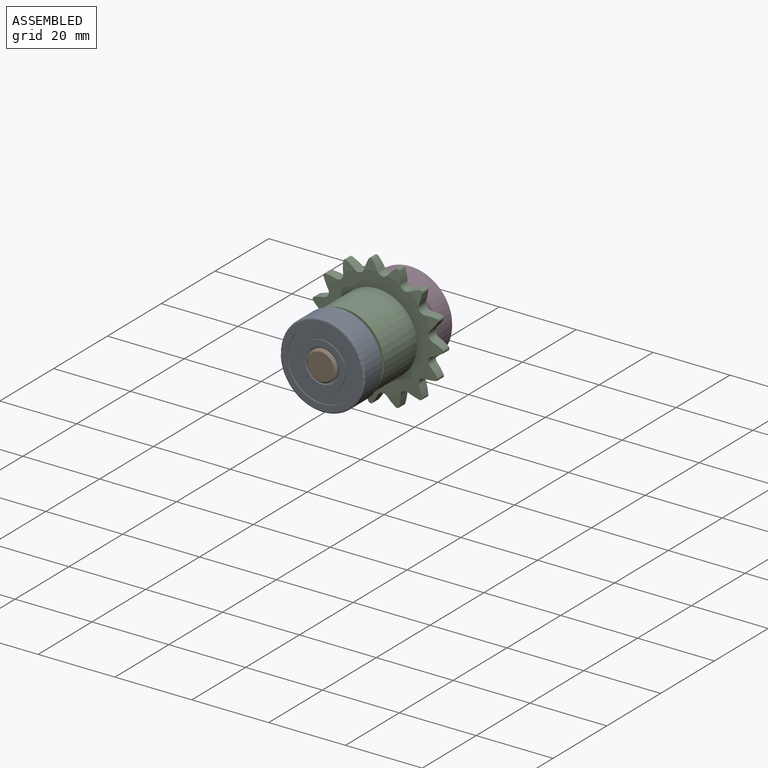
[diagram: assembled view]
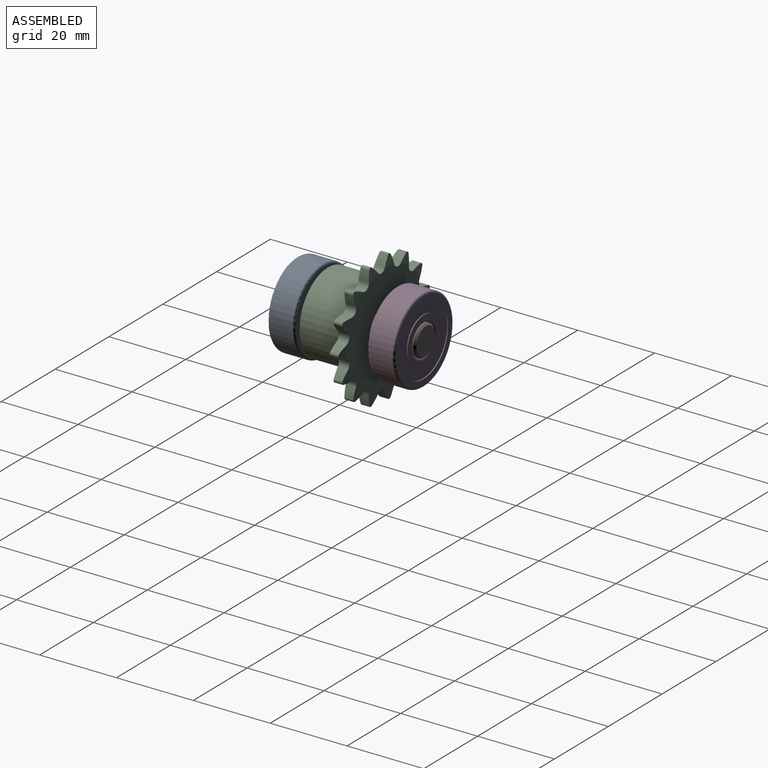
[diagram: assembled view, second angle]
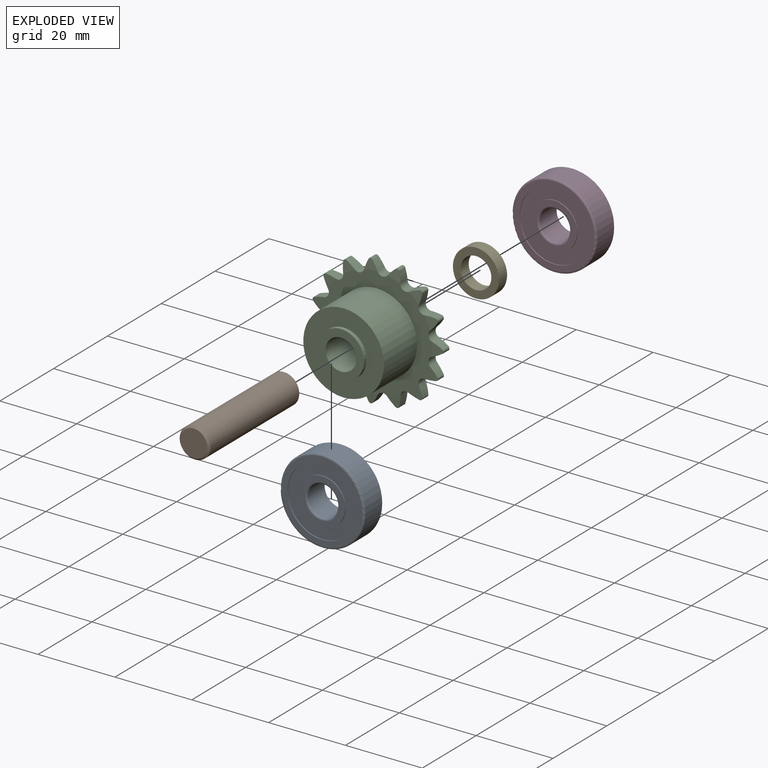
[diagram: exploded view]
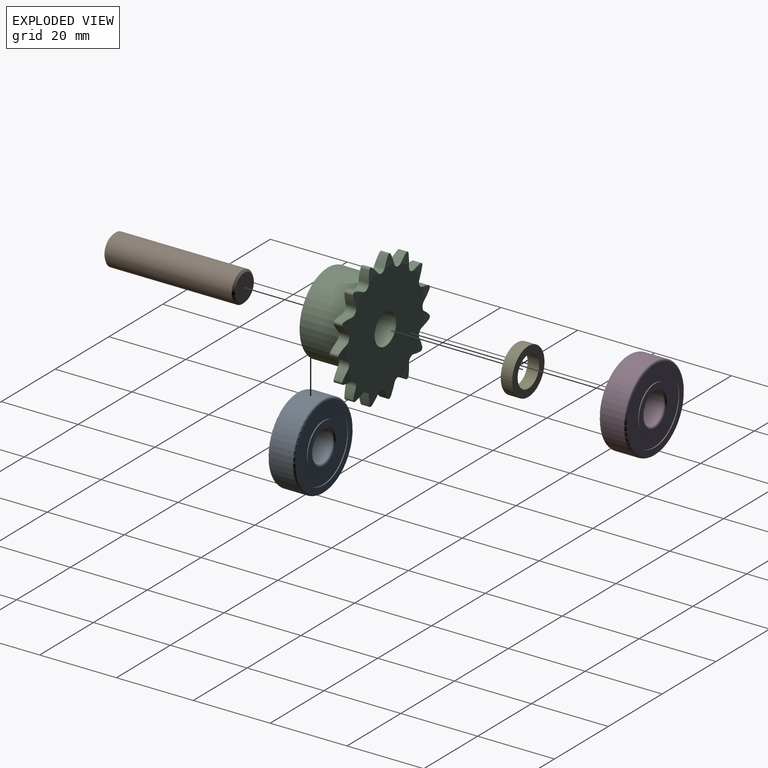
[diagram: exploded view, second angle]
ASSEMBLY  parts=5 mates=4
PART A: 16 faces, bbox 23.8x7x23.8 mm
  f0: cylinder r=4mm len=8mm, axis (0,1,0), area 150.8mm2, adj f12,f15
  f1: plane 12x12mm, normal (0,1,0), area 49.5mm2, adj f2,f12
  f2: cylinder r=6mm len=12mm, axis (0,1,0), area 9.4mm2, adj f1,f3
  f3: plane 18x18mm, normal (0,1,0), area 141.4mm2, adj f2,f4
  f4: cylinder r=9mm len=18mm, axis (0,1,0), area 14.1mm2, adj f3,f5
  f5: plane 21x21mm, normal (0,1,0), area 91.9mm2, adj f4,f13
  f6: cylinder r=11mm len=22mm, axis (0,1,0), area 414.7mm2, adj f13,f14
  f7: plane 21x21mm, normal (0,-1,0), area 91.9mm2, adj f8,f14
  f8: cylinder r=9mm len=18mm, axis (0,1,0), area 14.1mm2, adj f7,f9
  f9: plane 18x18mm, normal (0,-1,0), area 141.4mm2, adj f8,f10
  f10: cylinder r=6mm len=12mm, axis (0,1,0), area 9.4mm2, adj f9,f11
  f11: plane 12x12mm, normal (0,-1,0), area 49.5mm2, adj f10,f15
  f12: torus R=4.5mm, axis (0,1,0), area 20.6mm2, adj f0,f1
  f13: torus R=10.5mm, axis (0,1,0), area 53.4mm2, adj f5,f6
  f14: torus R=10.5mm, axis (0,1,0), area 53.4mm2, adj f6,f7
  f15: torus R=4.5mm, axis (0,1,0), area 20.6mm2, adj f0,f11
PART B: 5 faces, bbox 8x34x8 mm
  f0: plane 7x7mm, normal (0,-1,0), area 38.5mm2, adj f3
  f1: plane 7x7mm, normal (0,1,0), area 38.5mm2, adj f4
  f2: cylinder r=4mm len=33mm, axis (0,-1,0), area 829.4mm2, adj f3,f4
  f3: cone r=3.5mm half-angle=45deg, axis (0,1,0), area 16.7mm2, adj f0,f2
  f4: cone r=4mm half-angle=45deg, axis (0,-1,0), area 16.7mm2, adj f1,f2
PART C: 97 faces, bbox 34.3x16x34.4 mm
  f0: cylinder r=0.6mm len=2.27mm, axis (0,1,0), area 2.7mm2, adj f1,f5,f95,f96
  f1: cylinder r=13mm len=2.7mm, axis (0,1,0), area 7mm2, adj f0,f2,f95,f96
  f2: cylinder r=1.5mm len=2.7mm, axis (0,1,0), area 8.1mm2, adj f1,f3,f4,f61,f67,f68,f95,f96
  f3: plane 29x28.95mm, normal (0,-1,0), area 294.9mm2, adj f2,f6,f10,f14,f18,f22,f26,f30
  f4: plane 29x28.95mm, normal (0,1,0), area 591mm2, adj f2,f6,f10,f14,f18,f22,f26,f30
  f5: cylinder r=13mm len=2.7mm, axis (0,1,0), area 7mm2, adj f0,f6,f95,f96
  f6: cylinder r=1.5mm len=2.7mm, axis (0,1,0), area 8.1mm2, adj f3,f4,f5,f8,f93,f94,f95,f96
  f7: cylinder r=0.6mm len=2.27mm, axis (0,1,0), area 2.7mm2, adj f8,f9,f93,f94
  f8: cylinder r=13mm len=2.7mm, axis (0,1,0), area 7mm2, adj f6,f7,f93,f94
  f9: cylinder r=13mm len=2.81mm, axis (0,1,0), area 7mm2, adj f7,f10,f93,f94
  f10: cylinder r=1.5mm len=2.7mm, axis (0,1,0), area 8.1mm2, adj f3,f4,f9,f12,f91,f92,f93,f94
  f11: cylinder r=0.6mm len=2.27mm, axis (0,1,0), area 2.7mm2, adj f12,f13,f91,f92
  f12: cylinder r=13mm len=2.72mm, axis (0,1,0), area 7mm2, adj f10,f11,f91,f92
  f13: cylinder r=13mm len=2.7mm, axis (0,1,0), area 7mm2, adj f11,f14,f91,f92
  f14: cylinder r=1.5mm len=2.7mm, axis (0,1,0), area 8.1mm2, adj f3,f4,f13,f16,f89,f90,f91,f92
  f15: cylinder r=0.6mm len=2.27mm, axis (0,1,0), area 2.7mm2, adj f16,f17,f89,f90
  f16: cylinder r=13mm len=2.78mm, axis (0,1,0), area 7mm2, adj f14,f15,f89,f90
  f17: cylinder r=13mm len=2.7mm, axis (0,1,0), area 7mm2, adj f15,f18,f89,f90
  f18: cylinder r=1.5mm len=2.7mm, axis (0,1,0), area 8.1mm2, adj f3,f4,f17,f20,f87,f88,f89,f90
  f19: cylinder r=0.6mm len=2.27mm, axis (0,1,0), area 2.7mm2, adj f20,f21,f87,f88
  f20: cylinder r=13mm len=2.7mm, axis (0,1,0), area 7mm2, adj f18,f19,f87,f88
  f21: cylinder r=13mm len=2.7mm, axis (0,1,0), area 7mm2, adj f19,f22,f87,f88
  f22: cylinder r=1.5mm len=2.7mm, axis (0,1,0), area 8.1mm2, adj f3,f4,f21,f24,f85,f86,f87,f88
  f23: cylinder r=0.6mm len=2.27mm, axis (0,1,0), area 2.7mm2, adj f24,f25,f85,f86
  f24: cylinder r=13mm len=2.7mm, axis (0,1,0), area 7mm2, adj f22,f23,f85,f86
  f25: cylinder r=13mm len=2.81mm, axis (0,1,0), area 7mm2, adj f23,f26,f85,f86
  f26: cylinder r=1.5mm len=2.7mm, axis (0,1,0), area 8.1mm2, adj f3,f4,f25,f28,f83,f84,f85,f86
  f27: cylinder r=0.6mm len=2.27mm, axis (0,1,0), area 2.7mm2, adj f28,f29,f83,f84
  f28: cylinder r=13mm len=2.78mm, axis (0,1,0), area 7mm2, adj f26,f27,f83,f84
  f29: cylinder r=13mm len=2.7mm, axis (0,1,0), area 7mm2, adj f27,f30,f83,f84
  f30: cylinder r=1.5mm len=2.7mm, axis (0,1,0), area 8.1mm2, adj f3,f4,f29,f32,f81,f82,f83,f84
  f31: cylinder r=0.6mm len=2.27mm, axis (0,1,0), area 2.7mm2, adj f32,f33,f81,f82
  f32: cylinder r=13mm len=2.72mm, axis (0,1,0), area 7mm2, adj f30,f31,f81,f82
  f33: cylinder r=13mm len=2.7mm, axis (0,1,0), area 7mm2, adj f31,f34,f81,f82
  f34: cylinder r=1.5mm len=2.7mm, axis (0,1,0), area 8.1mm2, adj f3,f4,f33,f36,f79,f80,f81,f82
  f35: cylinder r=0.6mm len=2.27mm, axis (0,1,0), area 2.7mm2, adj f36,f37,f79,f80
  f36: cylinder r=13mm len=2.7mm, axis (0,1,0), area 7mm2, adj f34,f35,f79,f80
  f37: cylinder r=13mm len=2.72mm, axis (0,1,0), area 7mm2, adj f35,f38,f79,f80
  f38: cylinder r=1.5mm len=2.7mm, axis (0,1,0), area 8.1mm2, adj f3,f4,f37,f40,f77,f78,f79,f80
  f39: cylinder r=0.6mm len=2.27mm, axis (0,1,0), area 2.7mm2, adj f40,f41,f77,f78
  f40: cylinder r=13mm len=2.7mm, axis (0,1,0), area 7mm2, adj f38,f39,f77,f78
  f41: cylinder r=13mm len=2.78mm, axis (0,1,0), area 7mm2, adj f39,f42,f77,f78
  f42: cylinder r=1.5mm len=2.7mm, axis (0,1,0), area 8.1mm2, adj f3,f4,f41,f44,f75,f76,f77,f78
  f43: cylinder r=0.6mm len=2.27mm, axis (0,1,0), area 2.7mm2, adj f44,f45,f75,f76
  f44: cylinder r=13mm len=2.81mm, axis (0,1,0), area 7mm2, adj f42,f43,f75,f76
  f45: cylinder r=13mm len=2.7mm, axis (0,1,0), area 7mm2, adj f43,f46,f75,f76
  f46: cylinder r=1.5mm len=2.7mm, axis (0,1,0), area 8.1mm2, adj f3,f4,f45,f48,f73,f74,f75,f76
  f47: cylinder r=0.6mm len=2.27mm, axis (0,1,0), area 2.7mm2, adj f48,f49,f73,f74
  f48: cylinder r=13mm len=2.7mm, axis (0,1,0), area 7mm2, adj f46,f47,f73,f74
  f49: cylinder r=13mm len=2.7mm, axis (0,1,0), area 7mm2, adj f47,f50,f73,f74
  f50: cylinder r=1.5mm len=2.7mm, axis (0,1,0), area 8.1mm2, adj f3,f4,f49,f52,f71,f72,f73,f74
  f51: cylinder r=0.6mm len=2.27mm, axis (0,1,0), area 2.7mm2, adj f52,f53,f71,f72
  f52: cylinder r=13mm len=2.7mm, axis (0,1,0), area 7mm2, adj f50,f51,f71,f72
  f53: cylinder r=13mm len=2.78mm, axis (0,1,0), area 7mm2, adj f51,f54,f71,f72
  f54: cylinder r=1.5mm len=2.7mm, axis (0,1,0), area 8.1mm2, adj f3,f4,f53,f56,f69,f70,f71,f72
  f55: cylinder r=0.6mm len=2.27mm, axis (0,1,0), area 2.7mm2, adj f56,f57,f69,f70
  f56: cylinder r=13mm len=2.7mm, axis (0,1,0), area 7mm2, adj f54,f55,f69,f70
  f57: cylinder r=13mm len=2.72mm, axis (0,1,0), area 7mm2, adj f55,f58,f69,f70
  f58: cylinder r=1.5mm len=2.7mm, axis (0,1,0), area 8.1mm2, adj f3,f4,f57,f60,f67,f68,f69,f70
  f59: cylinder r=0.6mm len=2.27mm, axis (0,1,0), area 2.7mm2, adj f60,f61,f67,f68
  f60: cylinder r=13mm len=2.81mm, axis (0,1,0), area 7mm2, adj f58,f59,f67,f68
  f61: cylinder r=13mm len=2.7mm, axis (0,1,0), area 7mm2, adj f2,f59,f67,f68
  f62: plane 12x12mm, normal (0,-1,0), area 62.8mm2, adj f63,f66
  f63: cylinder r=6mm len=12mm, axis (0,1,0), area 37.7mm2, adj f62,f64
  f64: plane 21x21mm, normal (0,-1,0), area 233.3mm2, adj f63,f65
  f65: cylinder r=10.5mm len=21mm, axis (0,1,0), area 811.5mm2, adj f3,f64
  f66: cylinder r=4mm len=16mm, axis (0,-1,0), area 402.1mm2, adj f4,f62
  f67: cone r=22.5mm half-angle=85deg, axis (0,-1,0), area 6mm2, adj f2,f4,f58,f59,f60,f61
  f68: cone r=22.5mm half-angle=85deg, axis (0,1,0), area 6mm2, adj f2,f3,f58,f59,f60,f61
  f69: cone r=22.5mm half-angle=85deg, axis (0,-1,0), area 6mm2, adj f4,f54,f55,f56,f57,f58
  f70: cone r=22.5mm half-angle=85deg, axis (0,1,0), area 6mm2, adj f3,f54,f55,f56,f57,f58
  f71: cone r=22.5mm half-angle=85deg, axis (0,-1,0), area 6mm2, adj f4,f50,f51,f52,f53,f54
  f72: cone r=22.5mm half-angle=85deg, axis (0,1,0), area 6mm2, adj f3,f50,f51,f52,f53,f54
  f73: cone r=22.5mm half-angle=85deg, axis (0,-1,0), area 6mm2, adj f4,f46,f47,f48,f49,f50
  f74: cone r=22.5mm half-angle=85deg, axis (0,1,0), area 6mm2, adj f3,f46,f47,f48,f49,f50
  f75: cone r=22.5mm half-angle=85deg, axis (0,-1,0), area 6mm2, adj f4,f42,f43,f44,f45,f46
  f76: cone r=22.5mm half-angle=85deg, axis (0,1,0), area 6mm2, adj f3,f42,f43,f44,f45,f46
  f77: cone r=22.5mm half-angle=85deg, axis (0,-1,0), area 6mm2, adj f4,f38,f39,f40,f41,f42
  f78: cone r=22.5mm half-angle=85deg, axis (0,1,0), area 6mm2, adj f3,f38,f39,f40,f41,f42
  f79: cone r=22.5mm half-angle=85deg, axis (0,-1,0), area 6mm2, adj f4,f34,f35,f36,f37,f38
  f80: cone r=22.5mm half-angle=85deg, axis (0,1,0), area 6mm2, adj f3,f34,f35,f36,f37,f38
  f81: cone r=22.5mm half-angle=85deg, axis (0,-1,0), area 6mm2, adj f4,f30,f31,f32,f33,f34
  f82: cone r=22.5mm half-angle=85deg, axis (0,1,0), area 6mm2, adj f3,f30,f31,f32,f33,f34
  f83: cone r=22.5mm half-angle=85deg, axis (0,-1,0), area 6mm2, adj f4,f26,f27,f28,f29,f30
  f84: cone r=22.5mm half-angle=85deg, axis (0,1,0), area 6mm2, adj f3,f26,f27,f28,f29,f30
  f85: cone r=22.5mm half-angle=85deg, axis (0,-1,0), area 6mm2, adj f4,f22,f23,f24,f25,f26
  f86: cone r=22.5mm half-angle=85deg, axis (0,1,0), area 6mm2, adj f3,f22,f23,f24,f25,f26
  f87: cone r=22.5mm half-angle=85deg, axis (0,-1,0), area 6mm2, adj f4,f18,f19,f20,f21,f22
  f88: cone r=22.5mm half-angle=85deg, axis (0,1,0), area 6mm2, adj f3,f18,f19,f20,f21,f22
  f89: cone r=22.5mm half-angle=85deg, axis (0,-1,0), area 6mm2, adj f4,f14,f15,f16,f17,f18
  f90: cone r=22.5mm half-angle=85deg, axis (0,1,0), area 6mm2, adj f3,f14,f15,f16,f17,f18
  f91: cone r=22.5mm half-angle=85deg, axis (0,-1,0), area 6mm2, adj f4,f10,f11,f12,f13,f14
  f92: cone r=22.5mm half-angle=85deg, axis (0,1,0), area 6mm2, adj f3,f10,f11,f12,f13,f14
  f93: cone r=22.5mm half-angle=85deg, axis (0,-1,0), area 6mm2, adj f4,f6,f7,f8,f9,f10
  f94: cone r=22.5mm half-angle=85deg, axis (0,1,0), area 6mm2, adj f3,f6,f7,f8,f9,f10
  f95: cone r=22.5mm half-angle=85deg, axis (0,-1,0), area 6mm2, adj f0,f1,f2,f4,f5,f6
  f96: cone r=22.5mm half-angle=85deg, axis (0,1,0), area 6mm2, adj f0,f1,f2,f3,f5,f6
PART D: same geometry as A
PART E: 4 faces, bbox 12x3x12 mm
  f0: cylinder r=6mm len=12mm, axis (0,1,0), area 113.1mm2, adj f1,f3
  f1: plane 12x12mm, normal (0,-1,0), area 62.8mm2, adj f0,f2
  f2: cylinder r=4mm len=8mm, axis (0,1,0), area 75.4mm2, adj f1,f3
  f3: plane 12x12mm, normal (0,1,0), area 62.8mm2, adj f0,f2
PLACE A at identity
PLACE B at identity
PLACE C at identity
PLACE D rot(axis=(1,0,0),180deg) t=(0,-13,0)mm
PLACE E at identity
MATE fastened E.f0 <-> C.f63  axis (0,-1,0) through (0,0,0)mm
MATE revolute D.f0 <-> B.f2  axis (0,1,0) through (0,10,0)mm
MATE revolute B.f2 <-> A.f0  axis (0,-1,0) through (0,-23.5,0)mm
MATE revolute C.f63 <-> A.f0  axis (0,-1,0) through (0,-16,0)mm
